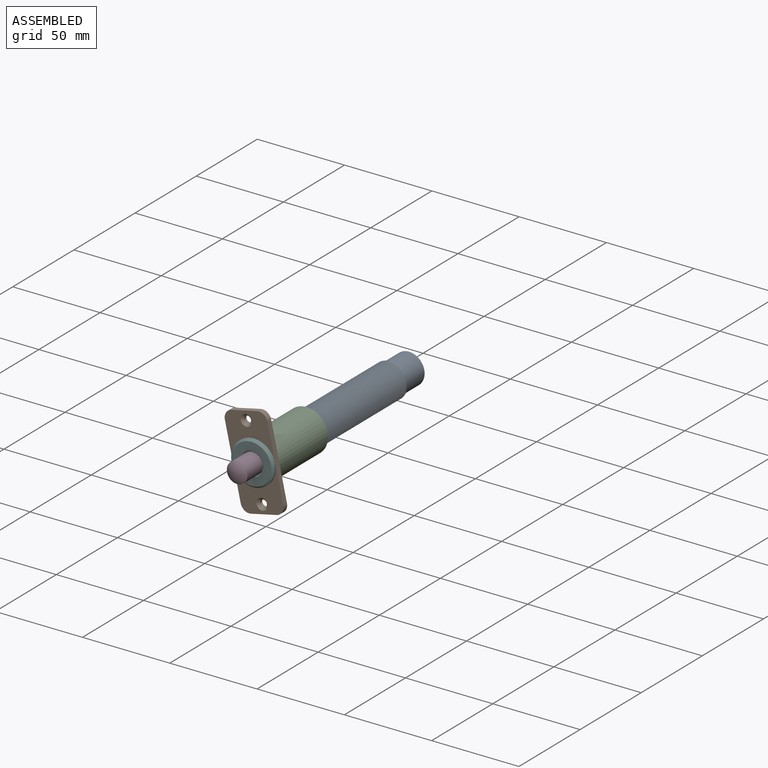
[diagram: assembled view]
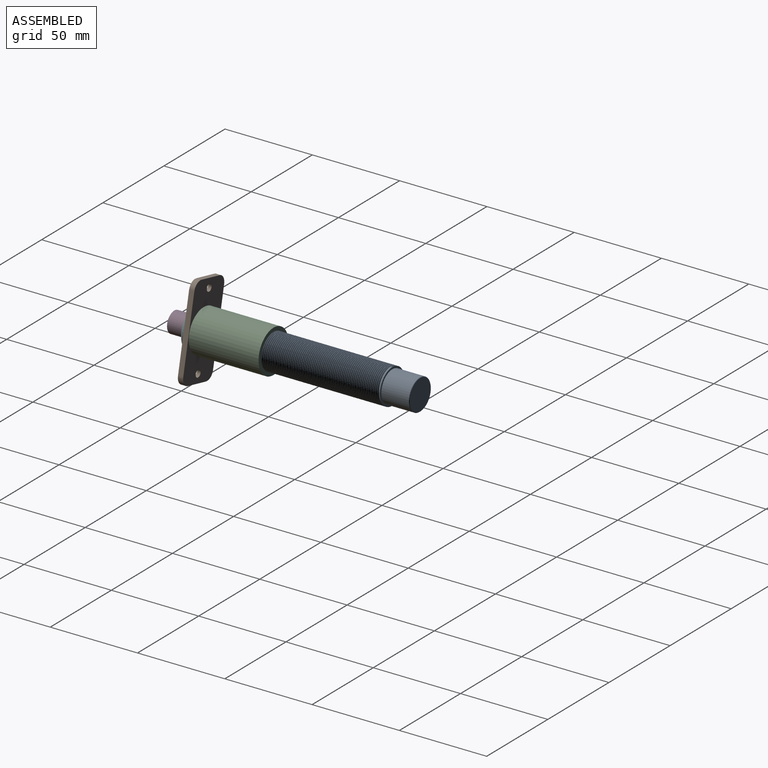
[diagram: assembled view, second angle]
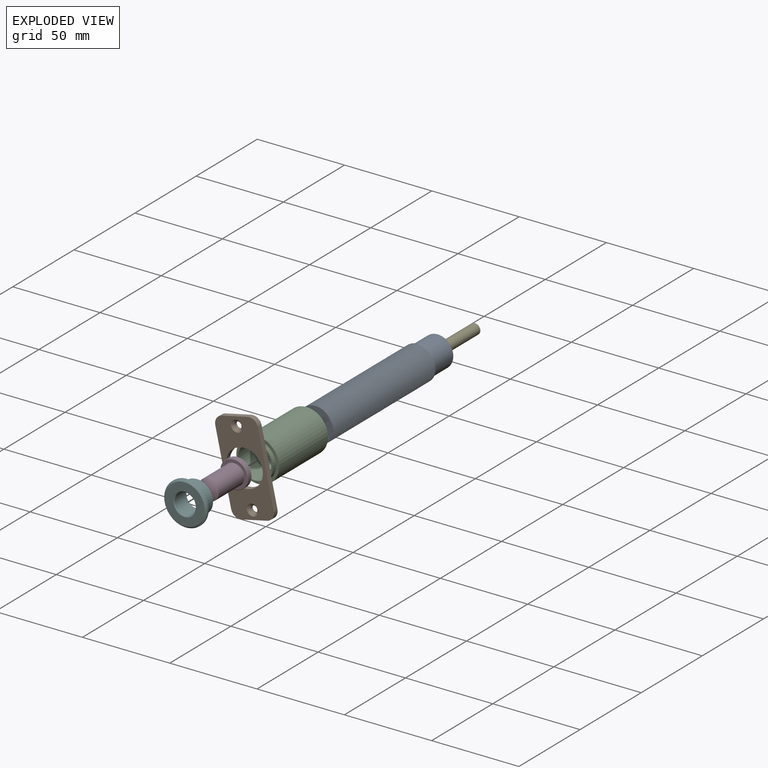
[diagram: exploded view]
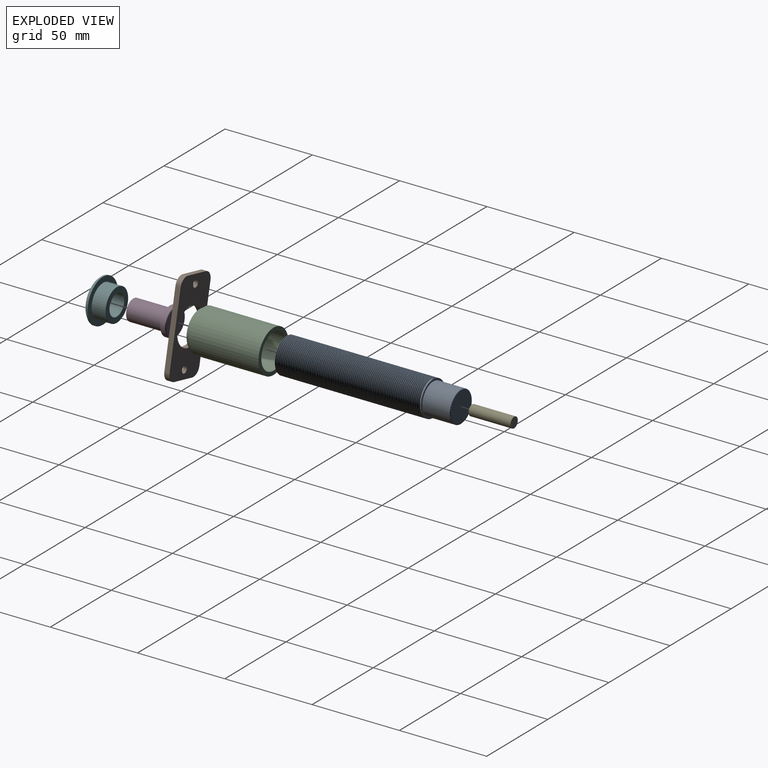
[diagram: exploded view, second angle]
ASSEMBLY  parts=6 mates=5
PART A: 11 faces, bbox 23.6x101x20.5 mm
  f0: cylinder r=10mm len=84mm, axis (0,1,0), area -2981.2mm2, adj f1,f5,f8,f9,f10
  f1: plane 19.92x19.91mm, normal (0,-1,0), area 266.7mm2, adj f0,f2,f9,f10
  f2: cylinder r=3mm len=24mm, axis (0,-1,0), area 452.4mm2, adj f1,f3
  f3: plane 6x6mm, normal (0,-1,0), area 28.3mm2, adj f2
  f4: cylinder r=8.9mm len=17.8mm, axis (0,1,0), area 883.5mm2, adj f5,f7
  f5: plane 20x20mm, normal (0,1,0), area 65.3mm2, adj f0,f4
  f6: plane 17.4x17.4mm, normal (0,1,0), area 237.8mm2, adj f7
  f7: cone r=8.7mm half-angle=45deg, axis (0,-1,0), area 15.6mm2, adj f4,f6
  f8: plane 0.85x0.74mm, normal (-1,0,0), area 0.3mm2, adj f0,f9,f10
  f9: bspline ~84.43x23.09mm, area 4305.4mm2, adj f0,f1,f8,f10
  f10: bspline ~84.09x23.09mm, area 4301.6mm2, adj f0,f1,f8,f9
PART B: 15 faces, bbox 25x3x52 mm
  f0: plane 15x3mm, normal (0,0,1), area 45mm2, adj f4,f5,f6,f9
  f1: plane 42x3mm, normal (-1,0,0), area 126mm2, adj f4,f5,f6,f7
  f2: plane 15x3mm, normal (0,0,-1), area 45mm2, adj f4,f5,f7,f8
  f3: plane 42x3mm, normal (1,0,0), area 126mm2, adj f4,f5,f8,f9
  f4: plane 52x25mm, normal (0,-1,0), area 865.8mm2, adj f0,f1,f2,f3,f6,f7,f8,f9
  f5: plane 52x25mm, normal (0,1,0), area 907mm2, adj f0,f1,f2,f3,f6,f7,f8,f9
  f6: cylinder r=5mm len=5mm, axis (0,1,0), area 23.6mm2, adj f0,f1,f4,f5
  f7: cylinder r=5mm len=5mm, axis (0,1,0), area 23.6mm2, adj f1,f2,f4,f5
  f8: cylinder r=5mm len=5mm, axis (0,1,0), area 23.6mm2, adj f2,f3,f4,f5
  f9: cylinder r=5mm len=5mm, axis (0,1,0), area 23.6mm2, adj f0,f3,f4,f5
  f10: cylinder r=2mm len=4mm, axis (0,-1,0), area 22mm2, adj f5,f11
  f11: cone r=2mm half-angle=45deg, axis (0,-1,0), area 29.2mm2, adj f4,f10
  f12: cylinder r=2mm len=4mm, axis (0,-1,0), area 22mm2, adj f5,f13
  f13: cone r=2mm half-angle=45deg, axis (0,-1,0), area 29.2mm2, adj f4,f12
  f14: cylinder r=10.5mm len=21mm, axis (0,-1,0), area 197.9mm2, adj f4,f5
PART C: 10 faces, bbox 24.5x42.5x24.5 mm
  f0: cylinder r=12.25mm len=40mm, axis (0,1,0), area 3078.8mm2, adj f1,f3
  f1: plane 24.5x24.5mm, normal (0,1,0), area 157.3mm2, adj f0,f7
  f2: cylinder r=10.5mm len=21mm, axis (0,-1,0), area 164.9mm2, adj f3,f4
  f3: plane 24.5x24.5mm, normal (0,-1,0), area 125.1mm2, adj f0,f2
  f4: plane 21x21mm, normal (0,-1,0), area 62.8mm2, adj f2,f5
  f5: cylinder r=9.5mm len=19mm, axis (0,-1,0), area 746.1mm2, adj f4,f6
  f6: plane 19x19mm, normal (0,-1,0), area 56.5mm2, adj f5,f9
  f7: cylinder r=10mm len=20mm, axis (0,1,0), area 1131mm2, adj f1,f8
  f8: plane 20x20mm, normal (0,1,0), area 87.2mm2, adj f7,f9
  f9: cylinder r=8.5mm len=17mm, axis (0,1,0), area 640.9mm2, adj f6,f8
PART D: 8 faces, bbox 26x16x16 mm
  f0: plane 15.5x15.5mm, normal (-1,0,0), area 188.7mm2, adj f6
  f1: sphere r=10mm, area 121mm2, adj f2
  f2: cylinder r=5.9mm len=20.77mm, axis (-1,0,0), area 770.1mm2, adj f1,f7
  f3: plane 15.5x15.5mm, normal (1,0,0), area 75.6mm2, adj f5,f7
  f4: cylinder r=8mm len=16mm, axis (-1,0,0), area 135.7mm2, adj f5,f6
  f5: cone r=8mm half-angle=45deg, axis (-1,0,0), area 17.5mm2, adj f3,f4
  f6: cone r=7.75mm half-angle=45deg, axis (1,0,0), area 17.5mm2, adj f0,f4
  f7: torus R=6mm, axis (1,0,0), area 5.9mm2, adj f2,f3
PART E: 3 faces, bbox 6x24x6 mm
  f0: cylinder r=2.99mm len=24mm, axis (0,1,0), area 451.6mm2, adj f1,f2
  f1: plane 5.99x5.99mm, normal (0,-1,0), area 28.2mm2, adj f0
  f2: plane 5.99x5.99mm, normal (0,1,0), area 28.2mm2, adj f0
PART F: 8 faces, bbox 24.8x10x24.8 mm
  f0: cylinder r=12.4mm len=24.8mm, axis (0,1,0), area 77.9mm2, adj f5,f6
  f1: plane 22.8x22.8mm, normal (0,-1,0), area 273.5mm2, adj f6,f7
  f2: plane 18.5x18.5mm, normal (0,1,0), area 153.8mm2, adj f3,f4
  f3: cylinder r=6.05mm len=12.1mm, axis (0,-1,0), area 361.1mm2, adj f2,f7
  f4: cylinder r=9.25mm len=18.5mm, axis (0,1,0), area 465mm2, adj f2,f5
  f5: plane 24.8x24.8mm, normal (0,1,0), area 214.2mm2, adj f0,f4
  f6: cone r=11.4mm half-angle=45deg, axis (0,1,0), area 105.7mm2, adj f0,f1
  f7: cone r=6.05mm half-angle=45deg, axis (0,-1,0), area 28mm2, adj f1,f3
PLACE A t=(-9.15,80.47,20.38)mm fixed
PLACE B rot(axis=(0,1,0),167.5deg) t=(-2.56,-43.53,48.47)mm
PLACE C rot(axis=(0,1,0),167.5deg) t=(-9.15,-3.53,20.38)mm
PLACE D rot(axis=(-0.71,0.71,-0.08),171.2deg) t=(-9.15,-36.33,20.38)mm
PLACE E t=(-9.15,104.47,20.38)mm
PLACE F rot(axis=(0,1,0),167.5deg) t=(-9.15,-38.53,20.38)mm
MATE cylindrical A.f0 <-> C.f0  axis (0,-1,0) through (-9.15,-19.53,20.38)mm
MATE slider A.f0 <-> E.f0  axis (0,-1,0) through (-9.15,-19.53,20.38)mm
MATE fastened B.f14 <-> F.f0  axis (0,-1,0) through (-9.15,-46.53,20.38)mm
MATE fastened C.f0 <-> B.f14  axis (0,-1,0) through (-9.15,-43.53,20.38)mm
MATE slider D.f2 <-> C.f0  axis (0,-1,0) through (-9.15,-39.53,20.38)mm
